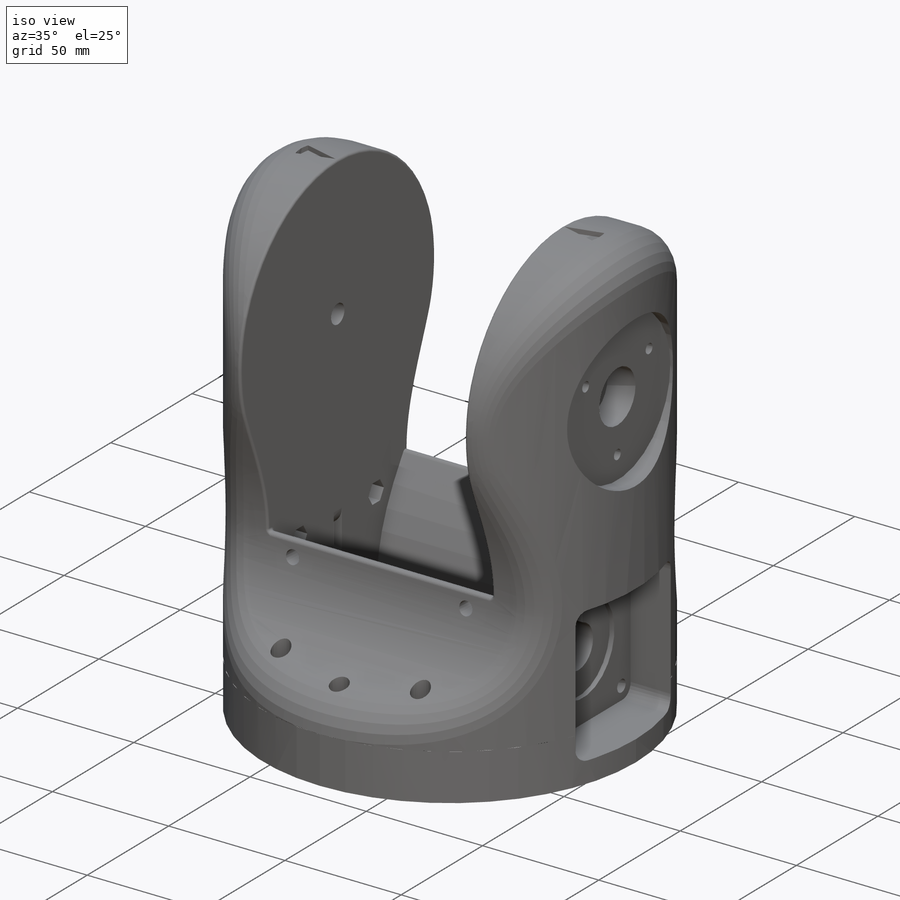
[diagram: iso view]
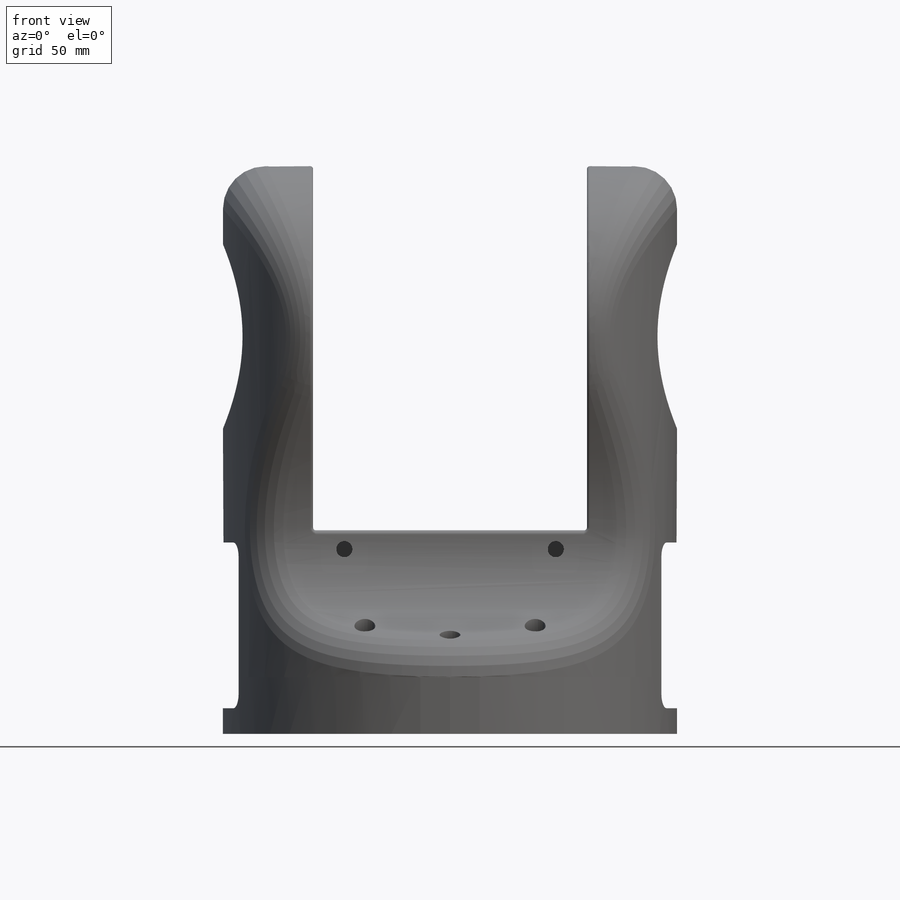
[diagram: front view]
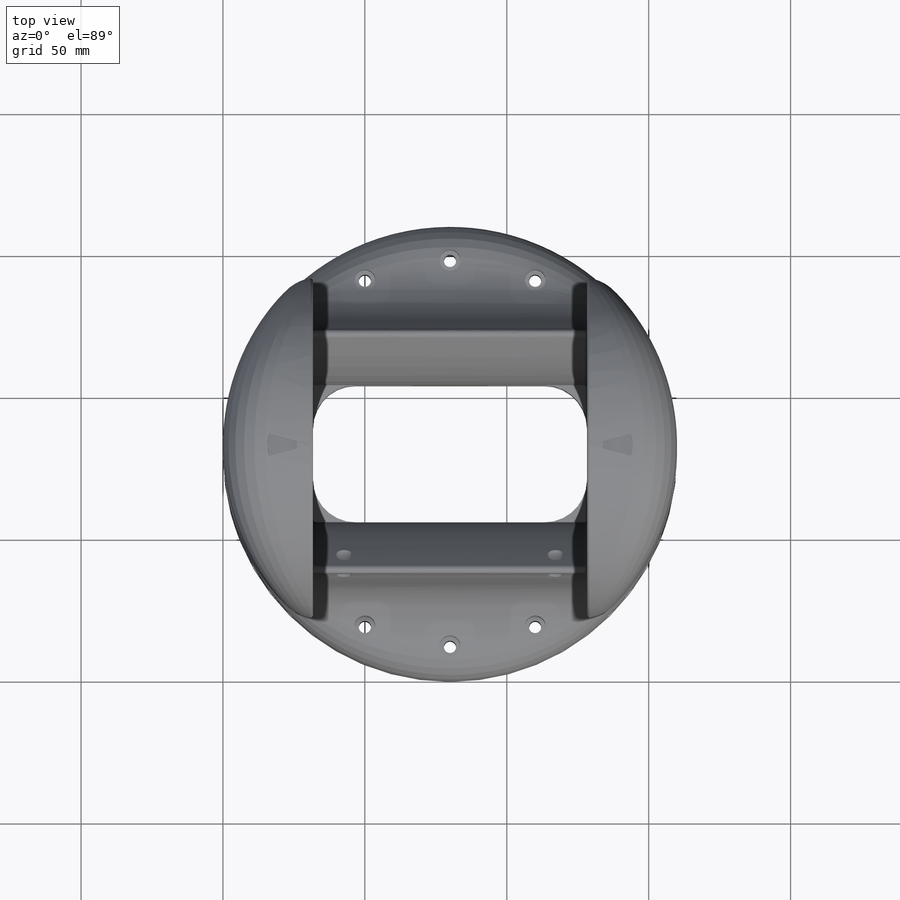
[diagram: top view]
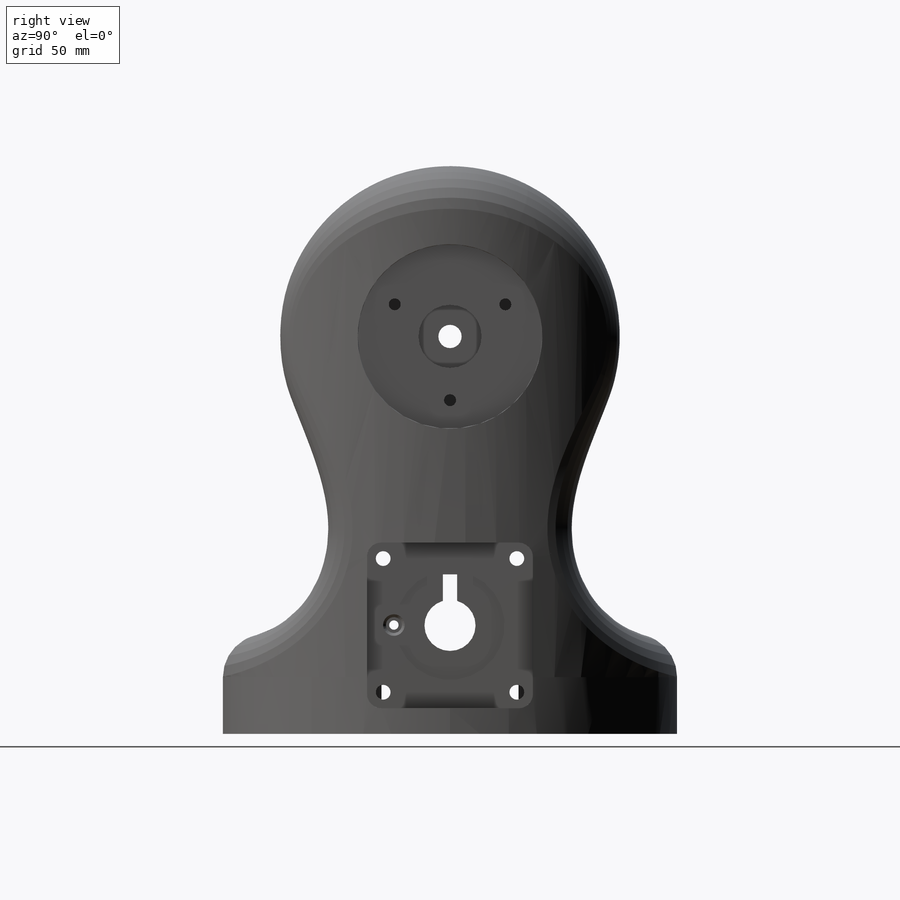
[diagram: right view]
SOLIDWORKS PART (.sldprt)
format: sldprt  version: not decoded by parser v0  size: 1,335,808 bytes
history: native  units: mm
features: sketch x25, cut_extrude x21, plane x8, fillet x6, mirror x5, extrude x3, chamfer x2, material x1 (+9 scaffold rows collapsed)
feature tree (80):
  scaffold x9  (default folders/planes/origin — collapsed)
  material  "Material <sin especificar>"
  plane  "Alzado"
  plane  "Planta"
  plane  "Vista lateral"
  sketch  "Croquis1"  dims[c1.D4=7.4mm c1.D3=4.3mm c1.D5=4.3mm c1.D8=~5.378708mm c2.D5=4.3mm c2.D8=4.3mm c2.D1=160.0mm c2.D2=160.0mm c2.D3=12.0mm c3.D5=136.0mm c3.D6=12.0mm c3.D7=19.0mm c3.D3=21.76mm c4.D5=60.0mm]
  extrude  "Saliente-Extruir1"  Depth=180mm
  sketch  "Croquis2"  dims[D3=8.2mm D1=60.0mm D2=13.0mm D4=55.0mm]
  sketch  "Croquis3"  dims[D1=96.5mm D2=125.0mm D3=13.0mm]
  cut_extrude  "Cortar-Extruir4"  Depth=175mm
  sketch  "Croquis9"  dims[D1=13.0mm D2=28.0mm]
  cut_extrude  "Cortar-Extruir7"  [1 undecoded]
  cut_extrude  "Cortar-Extruir8"  Depth=195mm
  plane  "Plano2"
  sketch  "Croquis13"  dims[D1=22.25mm]
  cut_extrude  "Cortar-Extruir25"  Depth=20mm
  cut_extrude  "Cortar-Extruir26"  [1 undecoded]
  sketch  "Croquis13<2>"  dims[D1=20.0mm]
  sketch  "Croquis10"  dims[D1=15.0mm]
  cut_extrude  "Cortar-Extruir12"  Depth=195mm
  sketch  "Croquis14"  dims[D1=15.0mm D2=4.3mm]
  extrude  "Saliente-Extruir7"  Depth=20mm
  sketch  "Croquis15"  dims[c1.D4=5.0mm c1.D5=9.0mm c1.D6=5.2mm c1.D1=9.0mm c1.D2=58.4mm c1.D3=58.4mm c2.D5=47.1mm]
  cut_extrude  "Cortar-Extruir28"  Depth=22.75mm
  sketch  "Croquis16"  dims[D2=5.2mm D3=18.0mm D1=47.1mm]
  cut_extrude  "Cortar-Extruir29"  Depth=20mm
  sketch  "Croquis17"  dims[D1=38.5mm]
  cut_extrude  "Cortar-Extruir30"  Depth=2mm
  cut_extrude  "Cortar-Extruir18"  [1 undecoded]
  sketch  "Croquis1<11>"  dims[D1=195.0mm]
  cut_extrude  "Cortar-Extruir24"  [1 undecoded]
  sketch  "Croquis1<16>"  dims[D1=30.0mm]
  extrude  "Saliente-Extruir6"  [1 undecoded]
  sketch  "Croquis1<17>"  dims[D1=11.0mm]
  fillet  "Redondeo8"  Radius=80mm
  fillet  "Redondeo9"  Radius=15mm
  sketch  "Croquis21"
  cut_extrude  "Cortar-Extruir31"  Depth=9mm
  sketch  "Croquis22"  dims[D1=8.25mm D2=~8.249695mm D3=~8.249287mm]
  cut_extrude  "Cortar-Extruir32"  Depth=5mm
  cut_extrude  "Cortar-Extruir33"  [1 undecoded]
  sketch  "Croquis22<2>"  dims[D1=35.0mm]
  plane  "Plano1"
  mirror  "Simetría1"
  sketch  "Croquis23"  dims[c1.D1=5.0mm c1.D2=5.0mm c2.D1=1.0mm c2.D2=10.0mm c2.D3=5.0mm]
  cut_extrude  "Cortar-Extruir34"  Depth=8mm
  fillet  "Redondeo10"  Radius=7.5mm
  mirror  "Simetría4"
  fillet  "Redondeo11"  Radius=7.5mm
  sketch  "Croquis24"  dims[D1=65.0mm]
  cut_extrude  "Cortar-Extruir35"  Depth=8mm
  sketch  "Croquis25"  dims[c1.D3=4.2mm c1.D1=32.5mm c2.D1=120.0deg c2.D2=10.0mm c2.D5=10.0mm c2.D4=0.0mm]
  cut_extrude  "Cortar-Extruir36"  Depth=15mm
  mirror  "Simetría5"
  plane  "Plano3"
  sketch  "Croquis27"  dims[D4=5.7mm D5=5.7mm D1=10.0mm D2=1.5mm D3=11.0mm D6=11.0mm]
  cut_extrude  "Cortar-Extruir37"  Depth=40mm
  sketch  "Croquis28"  dims[D2=3.3mm D4=3.3mm D1=13.33mm D3=5.5mm D5=5.5mm]
  cut_extrude  "Cortar-Extruir38"  Depth=24mm
  mirror  "Simetría6"
  sketch  "Croquis29"  dims[D1=5.6mm]
  cut_extrude  "Cortar-Extruir39"  Depth=5.3mm
  chamfer  "Chaflán4"  Distance=1mm Angle=45deg
  mirror  "Simetría9"
  chamfer  "Chaflán5"  Distance=1mm Angle=45deg
  plane  "Plano4"
  sketch  "Croquis30"  dims[c1.D1=~23.544874mm c2.D1=10.0deg c2.D2=20.0mm c3.D1=1.0mm c3.D2=31.75mm c4.D2=15.0deg c4.D3=15.0mm]
  cut_extrude  "Cortar-Extruir44"  Depth=2mm
  fillet  "Redondeo14"  Radius=1.5mm
  fillet  "Redondeo15"  Radius=1mm
  plane  "Plano5"
  sketch  "Croquis31"
decode coverage: 49 of 62 modeling features carry decoded parameters
note: ~ marks probable driven/reference dimensions
note: 6 parameter values undecoded
summary: no parameter record found for 6 features
note: suppression state not decoded; provenance and decode notes live in map.json
